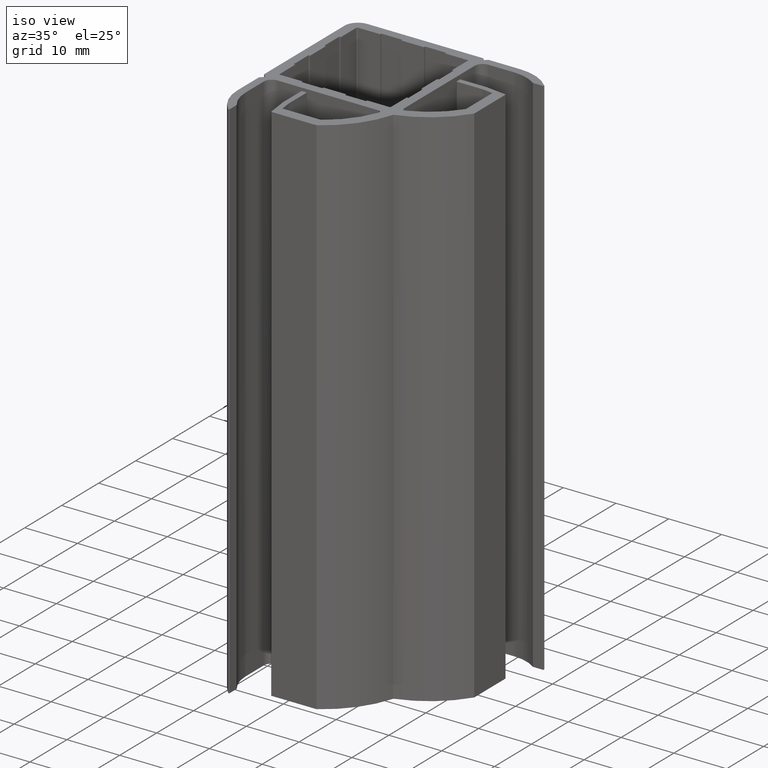
[diagram: clean part render]
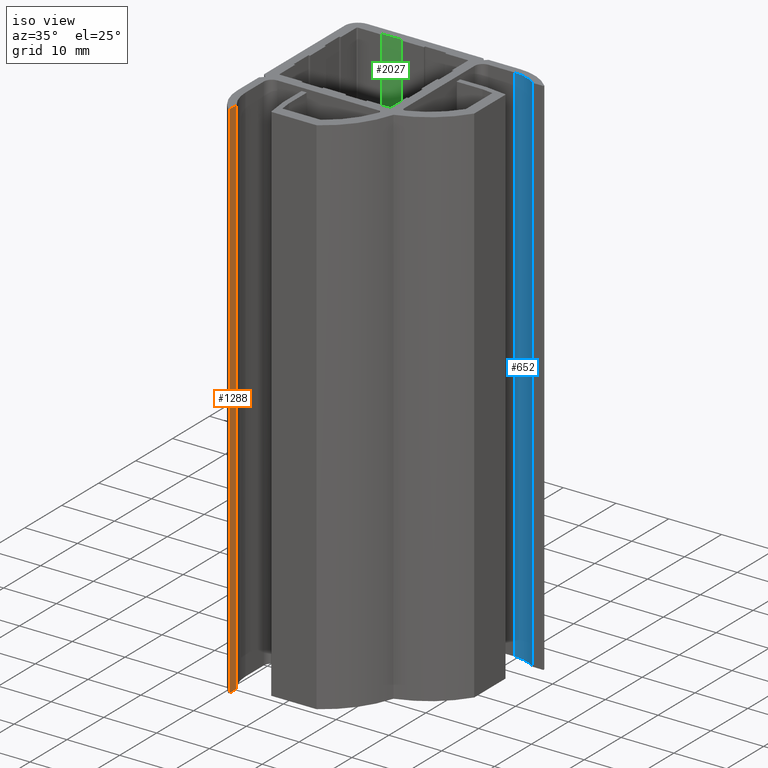
[diagram: same view with three faces highlighted in distinct colors, each labeled with its STEP entity id]
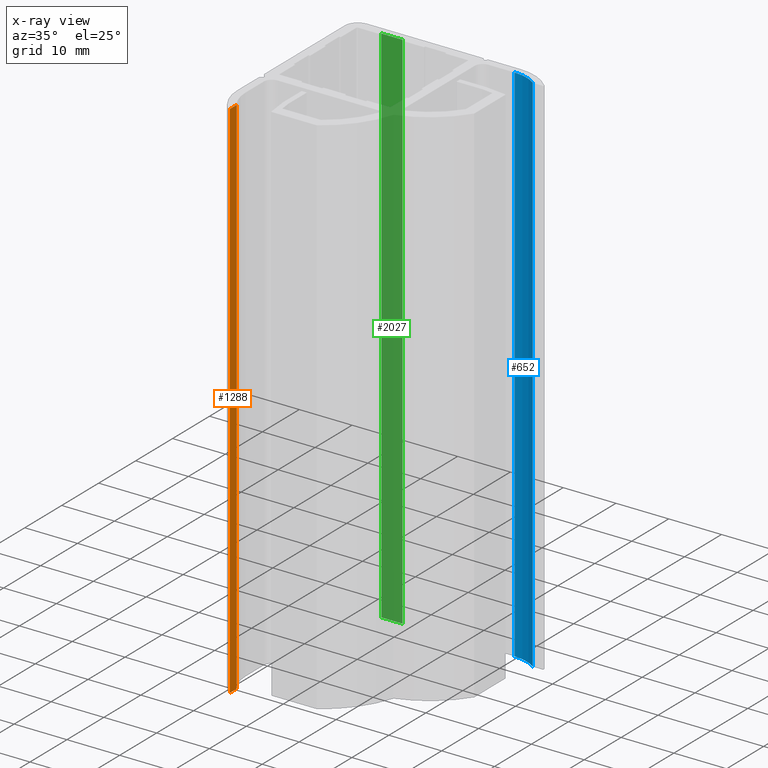
[diagram: x-ray of the same camera — body ghosted, the three highlighted faces saturated]
A machine part, iso view with three faces highlighted in distinct colors.
The next image is the same camera in x-ray (body ghosted, the three faces saturated) — at least one of them is partly hidden behind the body in this view.
Their STEP definitions:

[orange] entity #1288 — the highlighted planar face has unit normal (1, 0, 0).
#1230=CARTESIAN_POINT('',(3.000000000000910,-24.503553390593424,-100.0));
#1231=VERTEX_POINT('',#1230);
#1239=CARTESIAN_POINT('',(3.000000000000910,-24.503553390593424,0.0));
#1240=VERTEX_POINT('',#1239);
#1241=CARTESIAN_POINT('',(3.000000000000910,-24.503553390593424,-100.0));
#1242=DIRECTION('',(0.0,0.0,1.0));
#1243=VECTOR('',#1242,100.0);
#1244=LINE('',#1241,#1243);
#1245=EDGE_CURVE('',#1231,#1240,#1244,.T.);
#1258=CARTESIAN_POINT('',(3.000000000000910,-24.503553390593424,-100.0));
#1259=DIRECTION('',(1.0,0.0,0.0));
#1260=DIRECTION('',(0.0,1.0,0.0));
#1261=AXIS2_PLACEMENT_3D('',#1258,#1259,#1260);
#1262=PLANE('',#1261);
#1263=CARTESIAN_POINT('',(3.0,-22.669733413325531,-100.0));
#1264=VERTEX_POINT('',#1263);
#1265=CARTESIAN_POINT('',(3.000000000000910,-24.503553390593424,-100.0));
#1266=DIRECTION('',(0.0,1.0,0.0));
#1267=VECTOR('',#1266,1.833819977267893);
#1268=LINE('',#1265,#1267);
#1269=EDGE_CURVE('',#1231,#1264,#1268,.T.);
#1270=ORIENTED_EDGE('',*,*,#1269,.T.);
#1271=CARTESIAN_POINT('',(3.0,-22.669733413325531,0.0));
#1272=VERTEX_POINT('',#1271);
#1273=CARTESIAN_POINT('',(3.0,-22.669733413325531,-100.0));
#1274=DIRECTION('',(0.0,0.0,1.0));
#1275=VECTOR('',#1274,100.0);
#1276=LINE('',#1273,#1275);
#1277=EDGE_CURVE('',#1264,#1272,#1276,.T.);
#1278=ORIENTED_EDGE('',*,*,#1277,.T.);
#1279=CARTESIAN_POINT('',(3.000000000000910,-24.503553390593424,0.0));
#1280=DIRECTION('',(0.0,1.0,0.0));
#1281=VECTOR('',#1280,1.833819977267893);
#1282=LINE('',#1279,#1281);
#1283=EDGE_CURVE('',#1240,#1272,#1282,.T.);
#1284=ORIENTED_EDGE('',*,*,#1283,.F.);
#1285=ORIENTED_EDGE('',*,*,#1245,.F.);
#1286=EDGE_LOOP('',(#1270,#1278,#1284,#1285));
#1287=FACE_OUTER_BOUND('',#1286,.T.);
#1288=ADVANCED_FACE('',(#1287),#1262,.T.);

[blue] entity #652 — the highlighted cylindrical surface (partial cylindrical patch) has radius 7.5 mm, axis along (0, 0, -1).
#594=CARTESIAN_POINT('',(31.500000000000000,11.896446609406667,-100.0));
#595=VERTEX_POINT('',#594);
#602=CARTESIAN_POINT('',(31.500000000000000,11.896446609406667,0.0));
#603=VERTEX_POINT('',#602);
#604=CARTESIAN_POINT('',(31.500000000000000,11.896446609406667,-100.0));
#605=DIRECTION('',(0.0,0.0,1.0));
#606=VECTOR('',#605,100.0);
#607=LINE('',#604,#606);
#608=EDGE_CURVE('',#595,#603,#607,.T.);
#620=CARTESIAN_POINT('',(31.500000000000000,4.396446609406667,-100.0));
#621=DIRECTION('',(0.0,0.0,-1.0));
#622=DIRECTION('',(5.053215E-016,1.0,0.0));
#623=AXIS2_PLACEMENT_3D('',#620,#621,#622);
#624=CYLINDRICAL_SURFACE('',#623,7.499999999999992);
#625=CARTESIAN_POINT('',(35.973563272360707,10.416183451511870,-100.0));
#626=VERTEX_POINT('',#625);
#627=CARTESIAN_POINT('',(31.500000000000000,4.396446609406667,-100.0));
#628=DIRECTION('',(0.0,0.0,-1.0));
#629=DIRECTION('',(1.0,0.0,0.0));
#630=AXIS2_PLACEMENT_3D('',#627,#628,#629);
#631=CIRCLE('',#630,7.499999999999992);
#632=EDGE_CURVE('',#595,#626,#631,.T.);
#633=ORIENTED_EDGE('',*,*,#632,.T.);
#634=CARTESIAN_POINT('',(35.973563272360707,10.416183451511870,0.0));
#635=VERTEX_POINT('',#634);
#636=CARTESIAN_POINT('',(35.973563272360707,10.416183451511870,-100.0));
#637=DIRECTION('',(0.0,0.0,1.0));
#638=VECTOR('',#637,100.0);
#639=LINE('',#636,#638);
#640=EDGE_CURVE('',#626,#635,#639,.T.);
#641=ORIENTED_EDGE('',*,*,#640,.T.);
#642=CARTESIAN_POINT('',(31.500000000000000,4.396446609406667,0.0));
#643=DIRECTION('',(0.0,0.0,-1.0));
#644=DIRECTION('',(1.0,0.0,0.0));
#645=AXIS2_PLACEMENT_3D('',#642,#643,#644);
#646=CIRCLE('',#645,7.499999999999992);
#647=EDGE_CURVE('',#603,#635,#646,.T.);
#648=ORIENTED_EDGE('',*,*,#647,.F.);
#649=ORIENTED_EDGE('',*,*,#608,.F.);
#650=EDGE_LOOP('',(#633,#641,#648,#649));
#651=FACE_OUTER_BOUND('',#650,.T.);
#652=ADVANCED_FACE('',(#651),#624,.F.);

[green] entity #2027 — the highlighted planar face has unit normal (0, -1, 0).
#1988=CARTESIAN_POINT('',(6.349999999999909,11.746446609407087,-100.0));
#1989=DIRECTION('',(0.0,-1.0,0.0));
#1990=DIRECTION('',(1.0,0.0,0.0));
#1991=AXIS2_PLACEMENT_3D('',#1988,#1989,#1990);
#1992=PLANE('',#1991);
#1993=CARTESIAN_POINT('',(6.349999999999909,11.746446609407087,-100.0));
#1994=VERTEX_POINT('',#1993);
#1995=CARTESIAN_POINT('',(10.350000000001046,11.746446609407087,-100.0));
#1996=VERTEX_POINT('',#1995);
#1997=CARTESIAN_POINT('',(6.349999999999909,11.746446609407087,-100.0));
#1998=DIRECTION('',(1.0,0.0,0.0));
#1999=VECTOR('',#1998,4.000000000001137);
#2000=LINE('',#1997,#1999);
#2001=EDGE_CURVE('',#1994,#1996,#2000,.T.);
#2002=ORIENTED_EDGE('',*,*,#2001,.T.);
#2003=CARTESIAN_POINT('',(10.350000000001046,11.746446609407087,0.0));
#2004=VERTEX_POINT('',#2003);
#2005=CARTESIAN_POINT('',(10.350000000001046,11.746446609407087,-100.0));
#2006=DIRECTION('',(0.0,0.0,1.0));
#2007=VECTOR('',#2006,100.0);
#2008=LINE('',#2005,#2007);
#2009=EDGE_CURVE('',#1996,#2004,#2008,.T.);
#2010=ORIENTED_EDGE('',*,*,#2009,.T.);
#2011=CARTESIAN_POINT('',(6.349999999999909,11.746446609407087,0.0));
#2012=VERTEX_POINT('',#2011);
#2013=CARTESIAN_POINT('',(6.349999999999909,11.746446609407087,0.0));
#2014=DIRECTION('',(1.0,0.0,0.0));
#2015=VECTOR('',#2014,4.000000000001137);
#2016=LINE('',#2013,#2015);
#2017=EDGE_CURVE('',#2012,#2004,#2016,.T.);
#2018=ORIENTED_EDGE('',*,*,#2017,.F.);
#2019=CARTESIAN_POINT('',(6.349999999999909,11.746446609407087,-100.0));
#2020=DIRECTION('',(0.0,0.0,1.0));
#2021=VECTOR('',#2020,100.0);
#2022=LINE('',#2019,#2021);
#2023=EDGE_CURVE('',#1994,#2012,#2022,.T.);
#2024=ORIENTED_EDGE('',*,*,#2023,.F.);
#2025=EDGE_LOOP('',(#2002,#2010,#2018,#2024));
#2026=FACE_OUTER_BOUND('',#2025,.T.);
#2027=ADVANCED_FACE('',(#2026),#1992,.T.);